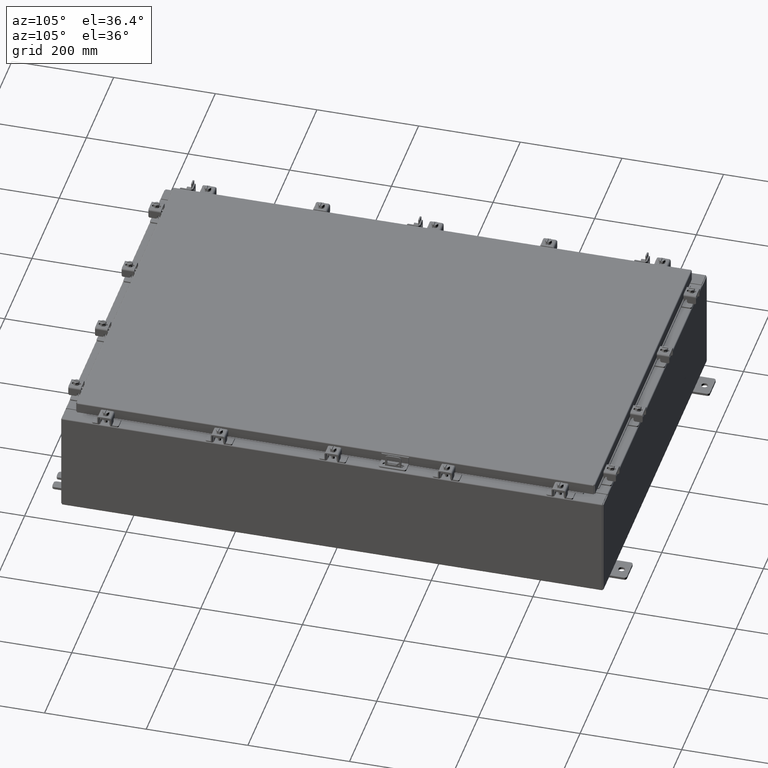
[diagram: clean part render]
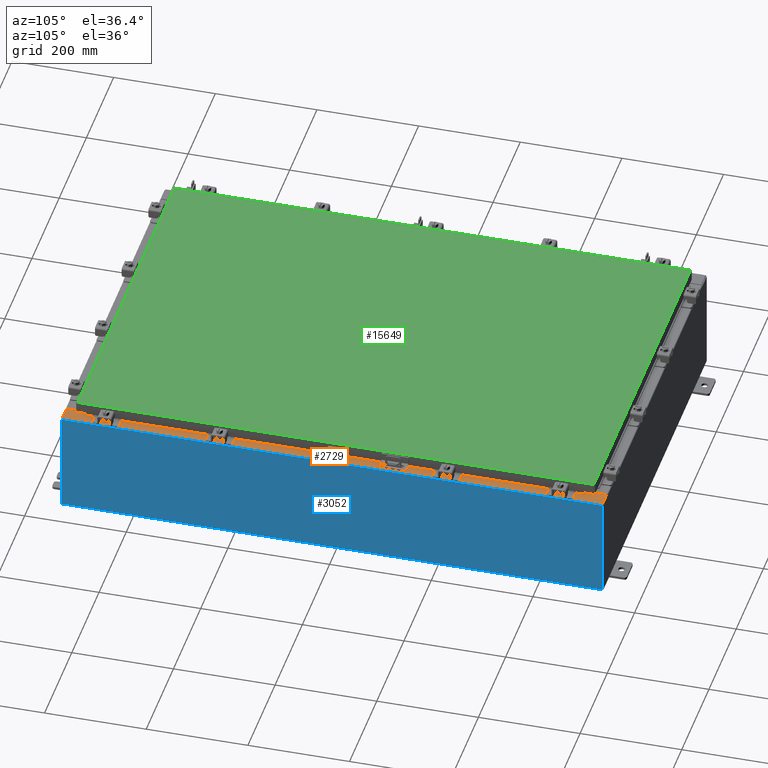
[diagram: same view with three faces highlighted in distinct colors, each labeled with its STEP entity id]
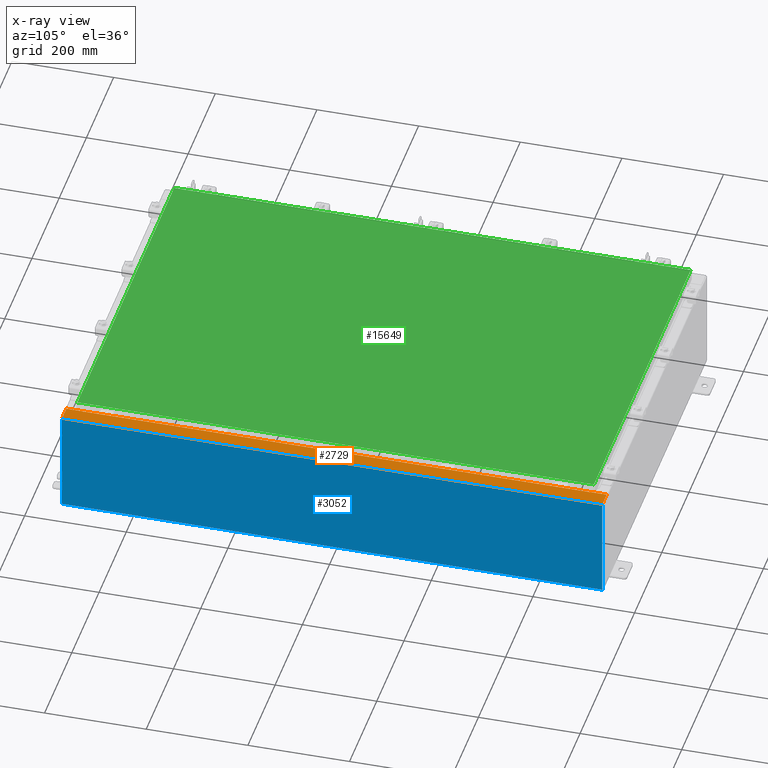
[diagram: x-ray of the same camera — body ghosted, the three highlighted faces saturated]
A machine part, auxiliary view with three faces highlighted in distinct colors.
The next image is the same camera in x-ray (body ghosted, the three faces saturated) — at least one of them is partly hidden behind the body in this view.
Their STEP definitions:

[orange] entity #2729 — the highlighted planar face has unit normal (-0, -0, -1).
#131 = VECTOR ( 'NONE', #19949, 39.37007874015748100 ) ;
#264 = DIRECTION ( 'NONE',  ( -1.000000000000000000, -2.189528850507526700E-047, 7.132762385546384700E-015 ) ) ;
#298 = CARTESIAN_POINT ( 'NONE',  ( 13.69970000000003200, -19.63109999999999300, 7.925300000000008900 ) ) ;
#1621 = VERTEX_POINT ( 'NONE', #4555 ) ;
#1791 = ORIENTED_EDGE ( 'NONE', *, *, #7655, .T. ) ;
#2224 = DIRECTION ( 'NONE',  ( 1.000000000000000000, 4.340572780400098900E-014, 2.170286390200049500E-014 ) ) ;
#2339 = EDGE_CURVE ( 'NONE', #5743, #1621, #8698, .T. ) ;
#2412 = CARTESIAN_POINT ( 'NONE',  ( 13.69970000000003200, -19.63109999999999300, 7.925300000000008900 ) ) ;
#2594 = CARTESIAN_POINT ( 'NONE',  ( 13.71270000000003200, -19.59374999999998900, 7.925300000000009800 ) ) ;
#2729 = ADVANCED_FACE ( 'NONE', ( #16711 ), #23968, .F. ) ;
#2755 = DIRECTION ( 'NONE',  ( 7.132762385546384700E-015, 2.611047864225855500E-017, 1.000000000000000000 ) ) ;
#2843 = CARTESIAN_POINT ( 'NONE',  ( 14.91230000000003000, -20.92529999999998900, 7.925300000000000000 ) ) ;
#3222 = ORIENTED_EDGE ( 'NONE', *, *, #12261, .F. ) ;
#3661 = VECTOR ( 'NONE', #8009, 39.37007874015748100 ) ;
#3723 = EDGE_CURVE ( 'NONE', #21635, #19716, #10776, .T. ) ;
#3770 = EDGE_CURVE ( 'NONE', #13893, #7006, #19112, .T. ) ;
#4051 = CARTESIAN_POINT ( 'NONE',  ( 5.679009539018309200E-014, 20.92529999999999300, 7.925300000000104800 ) ) ;
#4177 = CARTESIAN_POINT ( 'NONE',  ( 13.71270000000003200, 19.59374999999998900, 7.925300000000009800 ) ) ;
#4217 = CARTESIAN_POINT ( 'NONE',  ( 13.75005000000003200, -19.63109999999998900, 7.925300000000008900 ) ) ;
#4387 = CARTESIAN_POINT ( 'NONE',  ( 13.69970000000003200, 2.069333763834919300E-016, 7.925300000000008900 ) ) ;
#4448 = DIRECTION ( 'NONE',  ( -0.0000000000000000000, 1.000000000000000000, -0.0000000000000000000 ) ) ;
#4482 = LINE ( 'NONE', #2843, #9556 ) ;
#4555 = CARTESIAN_POINT ( 'NONE',  ( 13.75005000000003200, 19.59374999999998900, 7.925300000000007100 ) ) ;
#5029 = DIRECTION ( 'NONE',  ( -7.132762385546384700E-015, -2.611047864225855500E-017, -1.000000000000000000 ) ) ;
#5066 = LINE ( 'NONE', #4387, #10100 ) ;
#5200 = CARTESIAN_POINT ( 'NONE',  ( 13.75005000000003200, -19.59374999999998900, 7.925300000000009800 ) ) ;
#5359 = CARTESIAN_POINT ( 'NONE',  ( 14.91230000000003000, 20.92529999999998600, 7.925299999999998200 ) ) ;
#5743 = VERTEX_POINT ( 'NONE', #21849 ) ;
#6219 = VERTEX_POINT ( 'NONE', #2412 ) ;
#6629 = DIRECTION ( 'NONE',  ( -0.0000000000000000000, -1.000000000000000000, 2.611047864225856100E-017 ) ) ;
#6653 = CARTESIAN_POINT ( 'NONE',  ( 13.75005000000003200, 19.63109999999998900, 7.925300000000009800 ) ) ;
#6852 = CARTESIAN_POINT ( 'NONE',  ( 5.679009539018309800E-014, 2.069333763834944900E-016, 7.925300000000105700 ) ) ;
#6882 = CARTESIAN_POINT ( 'NONE',  ( 13.75005000000003200, -19.59374999999998900, 7.925300000000007100 ) ) ;
#7006 = VERTEX_POINT ( 'NONE', #22028 ) ;
#7333 = VECTOR ( 'NONE', #18559, 39.37007874015748100 ) ;
#7655 = EDGE_CURVE ( 'NONE', #6219, #21635, #23957, .T. ) ;
#7707 = VERTEX_POINT ( 'NONE', #6882 ) ;
#7795 = VECTOR ( 'NONE', #4448, 39.37007874015748100 ) ;
#8009 = DIRECTION ( 'NONE',  ( 1.000000000000000000, 0.0000000000000000000, 0.0000000000000000000 ) ) ;
#8221 = DIRECTION ( 'NONE',  ( 0.0000000000000000000, -1.000000000000000000, 2.611047864225856100E-017 ) ) ;
#8479 = ORIENTED_EDGE ( 'NONE', *, *, #3723, .T. ) ;
#8689 = CARTESIAN_POINT ( 'NONE',  ( 13.75005000000003200, -19.61242499999999100, 7.925300000000009800 ) ) ;
#8698 = LINE ( 'NONE', #4177, #3661 ) ;
#8819 = ORIENTED_EDGE ( 'NONE', *, *, #19880, .T. ) ;
#8974 = VECTOR ( 'NONE', #264, 39.37007874015748100 ) ;
#9228 = CARTESIAN_POINT ( 'NONE',  ( 14.91230000000003000, -20.92529999999998900, 7.925300000000000000 ) ) ;
#9240 = AXIS2_PLACEMENT_3D ( 'NONE', #8689, #21976, #10586 ) ;
#9556 = VECTOR ( 'NONE', #6629, 39.37007874015748100 ) ;
#10100 = VECTOR ( 'NONE', #8221, 39.37007874015748100 ) ;
#10216 = CARTESIAN_POINT ( 'NONE',  ( 5.679009539018310400E-014, -20.92529999999998900, 7.925300000000106600 ) ) ;
#10400 = ORIENTED_EDGE ( 'NONE', *, *, #12731, .F. ) ;
#10586 = DIRECTION ( 'NONE',  ( 1.000000000000000000, 0.0000000000000000000, 0.0000000000000000000 ) ) ;
#10776 = LINE ( 'NONE', #10216, #15826 ) ;
#10868 = VECTOR ( 'NONE', #2224, 39.37007874015748100 ) ;
#11526 = EDGE_LOOP ( 'NONE', ( #22546, #1791, #8479, #10400, #8819, #12823, #13521, #14275, #19653, #3222, #21930, #17667 ) ) ;
#12030 = LINE ( 'NONE', #298, #10868 ) ;
#12113 = VERTEX_POINT ( 'NONE', #18925 ) ;
#12187 = VERTEX_POINT ( 'NONE', #4217 ) ;
#12261 = EDGE_CURVE ( 'NONE', #12113, #5743, #17881, .T. ) ;
#12337 = LINE ( 'NONE', #5200, #7333 ) ;
#12688 = EDGE_CURVE ( 'NONE', #1621, #13893, #15188, .T. ) ;
#12731 = EDGE_CURVE ( 'NONE', #18985, #19716, #4482, .T. ) ;
#12823 = ORIENTED_EDGE ( 'NONE', *, *, #21941, .T. ) ;
#12843 = AXIS2_PLACEMENT_3D ( 'NONE', #6852, #5029, #18312 ) ;
#13521 = ORIENTED_EDGE ( 'NONE', *, *, #3770, .F. ) ;
#13893 = VERTEX_POINT ( 'NONE', #21548 ) ;
#14079 = CARTESIAN_POINT ( 'NONE',  ( 13.75005000000003200, 19.61242499999999100, 7.925300000000009800 ) ) ;
#14275 = ORIENTED_EDGE ( 'NONE', *, *, #12688, .F. ) ;
#14777 = AXIS2_PLACEMENT_3D ( 'NONE', #14079, #2755, #15987 ) ;
#15188 = CIRCLE ( 'NONE', #14777, 0.01867499999999949400 ) ;
#15826 = VECTOR ( 'NONE', #19696, 39.37007874015748100 ) ;
#15987 = DIRECTION ( 'NONE',  ( 1.000000000000000000, 0.0000000000000000000, 0.0000000000000000000 ) ) ;
#16711 = FACE_OUTER_BOUND ( 'NONE', #11526, .T. ) ;
#16969 = VERTEX_POINT ( 'NONE', #19563 ) ;
#17667 = ORIENTED_EDGE ( 'NONE', *, *, #22800, .F. ) ;
#17881 = LINE ( 'NONE', #2594, #7795 ) ;
#18312 = DIRECTION ( 'NONE',  ( -1.000000000000000000, 0.0000000000000000000, 7.132762385546384700E-015 ) ) ;
#18559 = DIRECTION ( 'NONE',  ( -1.000000000000000000, 0.0000000000000000000, 0.0000000000000000000 ) ) ;
#18773 = CARTESIAN_POINT ( 'NONE',  ( 13.69970000000003200, -20.92529999999998900, 7.925300000000009800 ) ) ;
#18925 = CARTESIAN_POINT ( 'NONE',  ( 13.71270000000003200, -19.59374999999998900, 7.925300000000009800 ) ) ;
#18985 = VERTEX_POINT ( 'NONE', #5359 ) ;
#19073 = LINE ( 'NONE', #4051, #8974 ) ;
#19112 = LINE ( 'NONE', #6653, #131 ) ;
#19229 = CIRCLE ( 'NONE', #9240, 0.01867499999999949400 ) ;
#19563 = CARTESIAN_POINT ( 'NONE',  ( 13.69970000000003200, 20.92529999999998900, 7.925300000000008900 ) ) ;
#19653 = ORIENTED_EDGE ( 'NONE', *, *, #2339, .F. ) ;
#19696 = DIRECTION ( 'NONE',  ( 1.000000000000000000, 2.189528850507526700E-047, -7.132762385546384700E-015 ) ) ;
#19716 = VERTEX_POINT ( 'NONE', #9228 ) ;
#19880 = EDGE_CURVE ( 'NONE', #18985, #16969, #19073, .T. ) ;
#19949 = DIRECTION ( 'NONE',  ( -1.000000000000000000, 4.340572780400098900E-014, -2.170286390200049500E-014 ) ) ;
#20097 = CARTESIAN_POINT ( 'NONE',  ( 13.69970000000003200, 2.069333763834919300E-016, 7.925300000000008900 ) ) ;
#21548 = CARTESIAN_POINT ( 'NONE',  ( 13.75005000000003200, 19.63109999999998900, 7.925300000000007100 ) ) ;
#21635 = VERTEX_POINT ( 'NONE', #18773 ) ;
#21849 = CARTESIAN_POINT ( 'NONE',  ( 13.71270000000003200, 19.59374999999998900, 7.925300000000009800 ) ) ;
#21930 = ORIENTED_EDGE ( 'NONE', *, *, #23369, .F. ) ;
#21941 = EDGE_CURVE ( 'NONE', #16969, #7006, #5066, .T. ) ;
#21976 = DIRECTION ( 'NONE',  ( 7.132762385546384700E-015, 2.611047864225855500E-017, 1.000000000000000000 ) ) ;
#22000 = DIRECTION ( 'NONE',  ( 0.0000000000000000000, -1.000000000000000000, 2.611047864225856100E-017 ) ) ;
#22028 = CARTESIAN_POINT ( 'NONE',  ( 13.69970000000003200, 19.63109999999998600, 7.925300000000008900 ) ) ;
#22546 = ORIENTED_EDGE ( 'NONE', *, *, #23700, .F. ) ;
#22800 = EDGE_CURVE ( 'NONE', #12187, #7707, #19229, .T. ) ;
#23346 = VECTOR ( 'NONE', #22000, 39.37007874015748100 ) ;
#23369 = EDGE_CURVE ( 'NONE', #7707, #12113, #12337, .T. ) ;
#23700 = EDGE_CURVE ( 'NONE', #6219, #12187, #12030, .T. ) ;
#23957 = LINE ( 'NONE', #20097, #23346 ) ;
#23968 = PLANE ( 'NONE',  #12843 ) ;

[blue] entity #3052 — the highlighted planar face has unit normal (-1, 0, 0).
#245 = CARTESIAN_POINT ( 'NONE',  ( 15.00000000000003200, -20.92529999999998900, 7.837599999999999200 ) ) ;
#403 = VECTOR ( 'NONE', #5218, 39.37007874015748100 ) ;
#484 = CARTESIAN_POINT ( 'NONE',  ( 15.00000000000000400, -20.92529999999998900, 0.01299999999999984700 ) ) ;
#1181 = CARTESIAN_POINT ( 'NONE',  ( 15.00000000000000400, -20.92529999999998900, 0.01299999999999920500 ) ) ;
#1743 = EDGE_CURVE ( 'NONE', #9357, #17254, #15560, .T. ) ;
#2065 = DIRECTION ( 'NONE',  ( 3.584876173029202900E-015, 0.0000000000000000000, 1.000000000000000000 ) ) ;
#2797 = EDGE_CURVE ( 'NONE', #9279, #20651, #5450, .T. ) ;
#3052 = ADVANCED_FACE ( 'NONE', ( #21468 ), #5787, .F. ) ;
#4360 = LINE ( 'NONE', #14217, #9435 ) ;
#4879 = DIRECTION ( 'NONE',  ( -3.584876173029202900E-015, 0.0000000000000000000, -1.000000000000000000 ) ) ;
#5218 = DIRECTION ( 'NONE',  ( -0.0000000000000000000, -1.000000000000000000, -0.0000000000000000000 ) ) ;
#5450 = LINE ( 'NONE', #12717, #403 ) ;
#5787 = PLANE ( 'NONE',  #8552 ) ;
#6607 = ORIENTED_EDGE ( 'NONE', *, *, #17930, .T. ) ;
#7727 = ORIENTED_EDGE ( 'NONE', *, *, #2797, .T. ) ;
#7980 = ORIENTED_EDGE ( 'NONE', *, *, #1743, .F. ) ;
#8552 = AXIS2_PLACEMENT_3D ( 'NONE', #11478, #13377, #2065 ) ;
#8608 = ORIENTED_EDGE ( 'NONE', *, *, #22798, .T. ) ;
#9279 = VERTEX_POINT ( 'NONE', #17989 ) ;
#9357 = VERTEX_POINT ( 'NONE', #18150 ) ;
#9435 = VECTOR ( 'NONE', #21732, 39.37007874015748100 ) ;
#11478 = CARTESIAN_POINT ( 'NONE',  ( 15.00000000000000400, 0.0000000000000000000, -5.403395625144963300E-014 ) ) ;
#12717 = CARTESIAN_POINT ( 'NONE',  ( 15.00000000000003200, 20.92529999999998900, 7.837599999999999200 ) ) ;
#13377 = DIRECTION ( 'NONE',  ( -1.000000000000000000, 0.0000000000000000000, 3.584876173029202900E-015 ) ) ;
#14146 = LINE ( 'NONE', #16235, #14758 ) ;
#14217 = CARTESIAN_POINT ( 'NONE',  ( 15.00000000000000400, 20.92529999999999600, -5.403395625144963300E-014 ) ) ;
#14758 = VECTOR ( 'NONE', #4879, 39.37007874015748100 ) ;
#14963 = VECTOR ( 'NONE', #17546, 39.37007874015748100 ) ;
#15560 = LINE ( 'NONE', #484, #14963 ) ;
#16235 = CARTESIAN_POINT ( 'NONE',  ( 15.00000000000000400, -20.92529999999998900, -5.403395625144963300E-014 ) ) ;
#17254 = VERTEX_POINT ( 'NONE', #1181 ) ;
#17546 = DIRECTION ( 'NONE',  ( -1.872056655020411900E-031, -1.000000000000000000, -5.222095728451712300E-017 ) ) ;
#17930 = EDGE_CURVE ( 'NONE', #9357, #9279, #4360, .T. ) ;
#17989 = CARTESIAN_POINT ( 'NONE',  ( 15.00000000000003200, 20.92529999999998600, 7.837599999999999200 ) ) ;
#18150 = CARTESIAN_POINT ( 'NONE',  ( 15.00000000000000400, 20.92529999999999300, 0.01300000000000203200 ) ) ;
#18414 = EDGE_LOOP ( 'NONE', ( #7727, #8608, #7980, #6607 ) ) ;
#20651 = VERTEX_POINT ( 'NONE', #245 ) ;
#21468 = FACE_OUTER_BOUND ( 'NONE', #18414, .T. ) ;
#21732 = DIRECTION ( 'NONE',  ( 3.584876173029202900E-015, 0.0000000000000000000, 1.000000000000000000 ) ) ;
#22798 = EDGE_CURVE ( 'NONE', #20651, #17254, #14146, .T. ) ;

[green] entity #15649 — the highlighted planar face has unit normal (0, 0, -1).
#79 = DIRECTION ( 'NONE',  ( 0.0000000000000000000, -1.000000000000000000, 0.0000000000000000000 ) ) ;
#347 = EDGE_CURVE ( 'NONE', #14922, #3459, #4620, .T. ) ;
#3459 = VERTEX_POINT ( 'NONE', #18199 ) ;
#3999 = DIRECTION ( 'NONE',  ( 0.0000000000000000000, 1.000000000000000000, 0.0000000000000000000 ) ) ;
#4236 = VECTOR ( 'NONE', #10558, 39.37007874015748100 ) ;
#4620 = LINE ( 'NONE', #17361, #23642 ) ;
#5652 = PLANE ( 'NONE',  #7058 ) ;
#7058 = AXIS2_PLACEMENT_3D ( 'NONE', #9451, #22750, #11353 ) ;
#7437 = EDGE_LOOP ( 'NONE', ( #14706, #9256, #7792, #19403 ) ) ;
#7657 = CARTESIAN_POINT ( 'NONE',  ( -13.99029999999999800, 20.00630000000000000, -2.048885995248197400E-016 ) ) ;
#7741 = CARTESIAN_POINT ( 'NONE',  ( 13.99030000000000000, -20.00630000000000300, -1.297627796990525000E-015 ) ) ;
#7792 = ORIENTED_EDGE ( 'NONE', *, *, #9973, .T. ) ;
#8115 = LINE ( 'NONE', #7741, #8699 ) ;
#8699 = VECTOR ( 'NONE', #3999, 39.37007874015748100 ) ;
#9256 = ORIENTED_EDGE ( 'NONE', *, *, #19194, .T. ) ;
#9451 = CARTESIAN_POINT ( 'NONE',  ( 0.0000000000000000000, 0.0000000000000000000, 0.0000000000000000000 ) ) ;
#9627 = CARTESIAN_POINT ( 'NONE',  ( -13.99029999999999600, -20.00630000000001000, -2.356218894535426900E-015 ) ) ;
#9973 = EDGE_CURVE ( 'NONE', #10408, #14165, #14324, .T. ) ;
#10408 = VERTEX_POINT ( 'NONE', #11607 ) ;
#10558 = DIRECTION ( 'NONE',  ( -1.000000000000000000, -0.0000000000000000000, -0.0000000000000000000 ) ) ;
#11353 = DIRECTION ( 'NONE',  ( -1.000000000000000000, 0.0000000000000000000, -0.0000000000000000000 ) ) ;
#11607 = CARTESIAN_POINT ( 'NONE',  ( 13.99029999999999800, 20.00630000000000700, 1.946441695485787500E-015 ) ) ;
#13229 = VECTOR ( 'NONE', #79, 39.37007874015748100 ) ;
#13293 = CARTESIAN_POINT ( 'NONE',  ( -13.99029999999999800, 20.00630000000000300, -2.048885995248197400E-016 ) ) ;
#14165 = VERTEX_POINT ( 'NONE', #7657 ) ;
#14324 = LINE ( 'NONE', #17863, #4236 ) ;
#14706 = ORIENTED_EDGE ( 'NONE', *, *, #347, .T. ) ;
#14922 = VERTEX_POINT ( 'NONE', #9627 ) ;
#15310 = FACE_OUTER_BOUND ( 'NONE', #7437, .T. ) ;
#15537 = EDGE_CURVE ( 'NONE', #14165, #14922, #19490, .T. ) ;
#15649 = ADVANCED_FACE ( 'NONE', ( #15310 ), #5652, .F. ) ;
#17361 = CARTESIAN_POINT ( 'NONE',  ( -13.99029999999999600, -20.00630000000001000, -2.356218894535426900E-015 ) ) ;
#17863 = CARTESIAN_POINT ( 'NONE',  ( 13.99029999999999800, 20.00630000000000700, 1.946441695485787500E-015 ) ) ;
#18199 = CARTESIAN_POINT ( 'NONE',  ( 13.99030000000000000, -20.00630000000000300, -1.297627796990525000E-015 ) ) ;
#19194 = EDGE_CURVE ( 'NONE', #3459, #10408, #8115, .T. ) ;
#19403 = ORIENTED_EDGE ( 'NONE', *, *, #15537, .T. ) ;
#19490 = LINE ( 'NONE', #13293, #13229 ) ;
#22750 = DIRECTION ( 'NONE',  ( 0.0000000000000000000, 0.0000000000000000000, -1.000000000000000000 ) ) ;
#23325 = DIRECTION ( 'NONE',  ( 1.000000000000000000, -0.0000000000000000000, -0.0000000000000000000 ) ) ;
#23642 = VECTOR ( 'NONE', #23325, 39.37007874015748100 ) ;